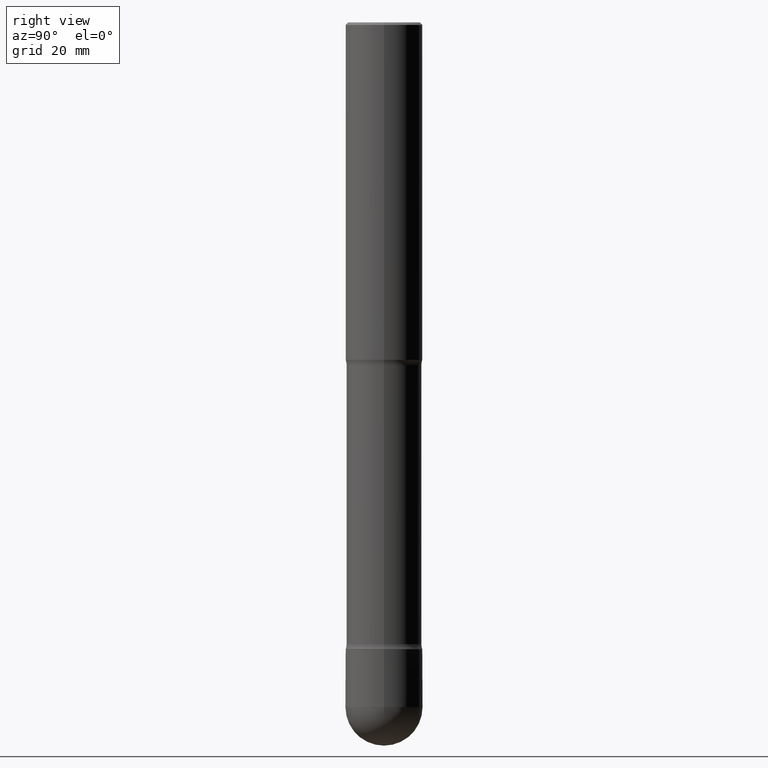
[diagram: clean part render]
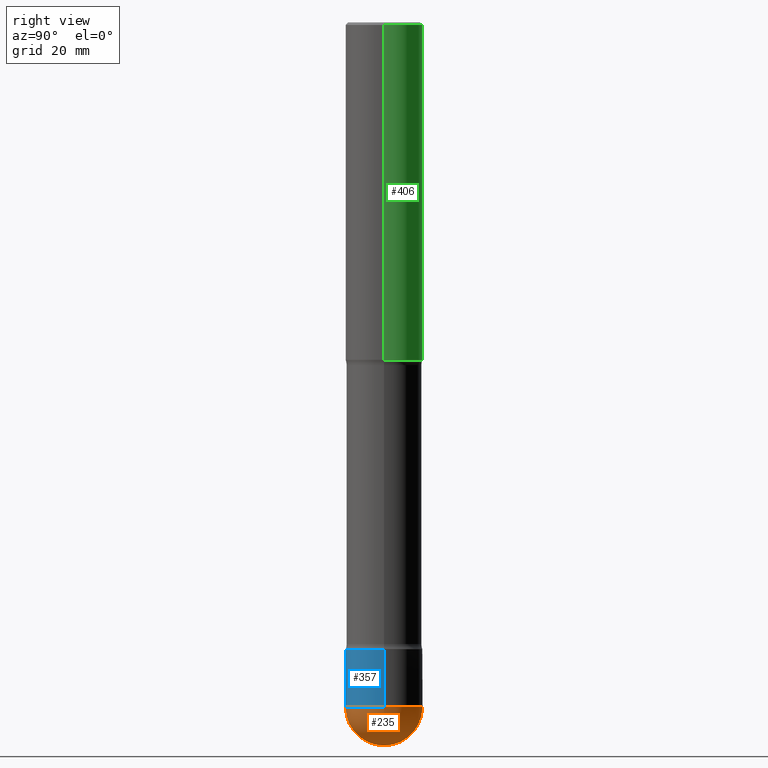
[diagram: same view with three faces highlighted in distinct colors, each labeled with its STEP entity id]
A machine part, right view with three faces highlighted in distinct colors.
Their STEP definitions:

[orange] entity #235 — the highlighted spherical surface has radius 7.9997 mm.
#34 = CARTESIAN_POINT ( 'NONE',  ( 0.3149499999999990085, -2.089380991493860711E-14, -5.590549999999999464 ) ) ;
#50 = EDGE_CURVE ( 'NONE', #518, #394, #399, .T. ) ;
#69 = DIRECTION ( 'NONE',  ( -1.000000000000000000, 6.982962677686266711E-15, -4.883557194083112901E-29 ) ) ;
#71 = AXIS2_PLACEMENT_3D ( 'NONE', #320, #222, #279 ) ;
#84 = ORIENTED_EDGE ( 'NONE', *, *, #526, .F. ) ;
#99 = AXIS2_PLACEMENT_3D ( 'NONE', #546, #69, #502 ) ;
#114 = CIRCLE ( 'NONE', #445, 0.3149499999999997302 ) ;
#116 = SPHERICAL_SURFACE ( 'NONE', #99, 0.3149499999999997302 ) ;
#121 = VERTEX_POINT ( 'NONE', #164 ) ;
#126 = ORIENTED_EDGE ( 'NONE', *, *, #50, .F. ) ;
#130 = DIRECTION ( 'NONE',  ( -2.445468806185136597E-29, 3.491481338843145583E-15, 1.000000000000000000 ) ) ;
#140 = EDGE_CURVE ( 'NONE', #121, #322, #114, .T. ) ;
#164 = CARTESIAN_POINT ( 'NONE',  ( 1.442824930378747100E-28, -2.063822817200776423E-14, -5.905499999999998195 ) ) ;
#212 = AXIS2_PLACEMENT_3D ( 'NONE', #512, #519, #338 ) ;
#222 = DIRECTION ( 'NONE',  ( -1.000000000000000000, 7.105427357601001070E-15, -4.926315508542082329E-29 ) ) ;
#235 = ADVANCED_FACE ( 'NONE', ( #329 ), #116, .T. ) ;
#248 = CARTESIAN_POINT ( 'NONE',  ( 1.367151563441831346E-28, -1.951930099886954466E-14, -5.590549999999999464 ) ) ;
#255 = CARTESIAN_POINT ( 'NONE',  ( 2.199284095337421611E-15, 0.3149499999999798017, -5.590550000000000352 ) ) ;
#261 = CARTESIAN_POINT ( 'NONE',  ( 1.364458217214061005E-28, -1.955787124980869236E-14, -5.590549999999999464 ) ) ;
#279 = DIRECTION ( 'NONE',  ( -7.105427357601000281E-15, -1.000000000000000000, 0.000000000000000000 ) ) ;
#281 = EDGE_LOOP ( 'NONE', ( #385, #560, #84, #126 ) ) ;
#286 = AXIS2_PLACEMENT_3D ( 'NONE', #248, #130, #308 ) ;
#308 = DIRECTION ( 'NONE',  ( 1.000000000000000000, -6.982962677686261977E-15, 0.000000000000000000 ) ) ;
#317 = CIRCLE ( 'NONE', #71, 0.3149499999999997302 ) ;
#320 = CARTESIAN_POINT ( 'NONE',  ( 1.364458217214061005E-28, -1.955787124980869236E-14, -5.590549999999999464 ) ) ;
#322 = VERTEX_POINT ( 'NONE', #255 ) ;
#329 = FACE_OUTER_BOUND ( 'NONE', #281, .T. ) ;
#338 = DIRECTION ( 'NONE',  ( 1.000000000000000000, -6.982962677686261977E-15, 0.000000000000000000 ) ) ;
#341 = CARTESIAN_POINT ( 'NONE',  ( -2.237854346276293990E-15, -0.3149500000000188815, -5.590549999999997688 ) ) ;
#385 = ORIENTED_EDGE ( 'NONE', *, *, #492, .F. ) ;
#394 = VERTEX_POINT ( 'NONE', #34 ) ;
#399 = CIRCLE ( 'NONE', #286, 0.3149499999999990085 ) ;
#445 = AXIS2_PLACEMENT_3D ( 'NONE', #261, #559, #473 ) ;
#455 = CIRCLE ( 'NONE', #212, 0.3149499999999990085 ) ;
#473 = DIRECTION ( 'NONE',  ( 6.982962677686266711E-15, 1.000000000000000000, 0.000000000000000000 ) ) ;
#492 = EDGE_CURVE ( 'NONE', #121, #518, #317, .T. ) ;
#502 = DIRECTION ( 'NONE',  ( 6.982962677686266711E-15, 1.000000000000000000, -3.469564049740295925E-15 ) ) ;
#512 = CARTESIAN_POINT ( 'NONE',  ( 1.367151563441831346E-28, -1.951930099886954466E-14, -5.590549999999999464 ) ) ;
#518 = VERTEX_POINT ( 'NONE', #341 ) ;
#519 = DIRECTION ( 'NONE',  ( -2.445468806185136597E-29, 3.491481338843145583E-15, 1.000000000000000000 ) ) ;
#526 = EDGE_CURVE ( 'NONE', #394, #322, #455, .T. ) ;
#546 = CARTESIAN_POINT ( 'NONE',  ( 1.364458217214061005E-28, -1.955787124980869236E-14, -5.590549999999999464 ) ) ;
#559 = DIRECTION ( 'NONE',  ( 1.000000000000000000, -6.982962677686265922E-15, 4.883557194083112340E-29 ) ) ;
#560 = ORIENTED_EDGE ( 'NONE', *, *, #140, .T. ) ;

[blue] entity #357 — the highlighted cylindrical surface (partial cylindrical patch) has radius 7.9997 mm, axis along (-0, 0, 1).
#8 = AXIS2_PLACEMENT_3D ( 'NONE', #117, #564, #245 ) ;
#34 = CARTESIAN_POINT ( 'NONE',  ( 0.3149499999999990085, -2.089380991493860711E-14, -5.590549999999999464 ) ) ;
#50 = EDGE_CURVE ( 'NONE', #518, #394, #399, .T. ) ;
#80 = DIRECTION ( 'NONE',  ( 1.000000000000000000, -6.982962677686266711E-15, 4.876176775795935793E-29 ) ) ;
#88 = EDGE_CURVE ( 'NONE', #370, #284, #468, .T. ) ;
#101 = EDGE_CURVE ( 'NONE', #394, #476, #199, .T. ) ;
#104 = EDGE_CURVE ( 'NONE', #284, #476, #432, .T. ) ;
#117 = CARTESIAN_POINT ( 'NONE',  ( 1.251615389693614574E-28, -1.786975064033310244E-14, -5.118099999999999206 ) ) ;
#129 = ORIENTED_EDGE ( 'NONE', *, *, #101, .T. ) ;
#130 = DIRECTION ( 'NONE',  ( -2.445468806185136597E-29, 3.491481338843145583E-15, 1.000000000000000000 ) ) ;
#134 = EDGE_LOOP ( 'NONE', ( #451, #307, #213, #129, #565 ) ) ;
#146 = CARTESIAN_POINT ( 'NONE',  ( 0.3149499999999990640, -2.006903473567038758E-14, -5.118099999999999206 ) ) ;
#167 = DIRECTION ( 'NONE',  ( -2.445468806185136877E-29, 3.491481338843145188E-15, 1.000000000000000000 ) ) ;
#169 = CIRCLE ( 'NONE', #442, 0.3149499999999990085 ) ;
#199 = LINE ( 'NONE', #293, #267 ) ;
#211 = FACE_OUTER_BOUND ( 'NONE', #134, .T. ) ;
#213 = ORIENTED_EDGE ( 'NONE', *, *, #50, .T. ) ;
#245 = DIRECTION ( 'NONE',  ( 1.000000000000000000, -6.982962677686273021E-15, 0.000000000000000000 ) ) ;
#248 = CARTESIAN_POINT ( 'NONE',  ( 1.367151563441831346E-28, -1.951930099886954466E-14, -5.590549999999999464 ) ) ;
#251 = CYLINDRICAL_SURFACE ( 'NONE', #533, 0.3149499999999990640 ) ;
#265 = CARTESIAN_POINT ( 'NONE',  ( -0.3149499999999990085, -1.645667147332489546E-14, -5.590549999999999464 ) ) ;
#267 = VECTOR ( 'NONE', #343, 39.37007874015748143 ) ;
#284 = VERTEX_POINT ( 'NONE', #495 ) ;
#286 = AXIS2_PLACEMENT_3D ( 'NONE', #248, #130, #308 ) ;
#293 = CARTESIAN_POINT ( 'NONE',  ( 0.3149499999999990640, -2.199284095337283166E-15, 1.535751875536925365E-29 ) ) ;
#307 = ORIENTED_EDGE ( 'NONE', *, *, #327, .T. ) ;
#308 = DIRECTION ( 'NONE',  ( 1.000000000000000000, -6.982962677686261977E-15, 0.000000000000000000 ) ) ;
#327 = EDGE_CURVE ( 'NONE', #370, #518, #169, .T. ) ;
#335 = CARTESIAN_POINT ( 'NONE',  ( -0.3149499999999990640, 2.237854346276428885E-15, -1.549218606675777912E-29 ) ) ;
#341 = CARTESIAN_POINT ( 'NONE',  ( -2.237854346276293990E-15, -0.3149500000000188815, -5.590549999999997688 ) ) ;
#343 = DIRECTION ( 'NONE',  ( -2.445468806185136877E-29, 3.491481338843145188E-15, 1.000000000000000000 ) ) ;
#357 = ADVANCED_FACE ( 'NONE', ( #211 ), #251, .T. ) ;
#370 = VERTEX_POINT ( 'NONE', #265 ) ;
#394 = VERTEX_POINT ( 'NONE', #34 ) ;
#399 = CIRCLE ( 'NONE', #286, 0.3149499999999990085 ) ;
#425 = DIRECTION ( 'NONE',  ( -2.445468806185136597E-29, 3.491481338843145583E-15, 1.000000000000000000 ) ) ;
#432 = CIRCLE ( 'NONE', #8, 0.3149499999999990640 ) ;
#442 = AXIS2_PLACEMENT_3D ( 'NONE', #558, #467, #462 ) ;
#451 = ORIENTED_EDGE ( 'NONE', *, *, #88, .F. ) ;
#462 = DIRECTION ( 'NONE',  ( 1.000000000000000000, -6.982962677686261977E-15, 0.000000000000000000 ) ) ;
#467 = DIRECTION ( 'NONE',  ( -2.445468806185136597E-29, 3.491481338843145583E-15, 1.000000000000000000 ) ) ;
#468 = LINE ( 'NONE', #335, #482 ) ;
#476 = VERTEX_POINT ( 'NONE', #146 ) ;
#482 = VECTOR ( 'NONE', #167, 39.37007874015748143 ) ;
#495 = CARTESIAN_POINT ( 'NONE',  ( -0.3149499999999990640, -1.645667147332489546E-14, -5.118099999999999206 ) ) ;
#518 = VERTEX_POINT ( 'NONE', #341 ) ;
#521 = CARTESIAN_POINT ( 'NONE',  ( 0.000000000000000000, 0.000000000000000000, 0.000000000000000000 ) ) ;
#533 = AXIS2_PLACEMENT_3D ( 'NONE', #521, #425, #80 ) ;
#558 = CARTESIAN_POINT ( 'NONE',  ( 1.367151563441831346E-28, -1.951930099886954466E-14, -5.590549999999999464 ) ) ;
#564 = DIRECTION ( 'NONE',  ( -2.445468806185136597E-29, 3.491481338843145583E-15, 1.000000000000000000 ) ) ;
#565 = ORIENTED_EDGE ( 'NONE', *, *, #104, .F. ) ;

[green] entity #406 — the highlighted cylindrical surface (partial cylindrical patch) has radius 7.9997 mm, axis along (0, -0, -1).
#6 = CARTESIAN_POINT ( 'NONE',  ( 4.890937612370354609E-31, -6.982962677686407473E-17, -0.02000000000000033348 ) ) ;
#28 = DIRECTION ( 'NONE',  ( 2.445468806185136597E-29, -3.491481338843145583E-15, -1.000000000000000000 ) ) ;
#29 = VECTOR ( 'NONE', #506, 39.37007874015748143 ) ;
#35 = CARTESIAN_POINT ( 'NONE',  ( 6.739467482965618232E-29, -9.622173421717824390E-15, -2.755900000000000016 ) ) ;
#36 = VERTEX_POINT ( 'NONE', #352 ) ;
#57 = EDGE_CURVE ( 'NONE', #36, #515, #312, .T. ) ;
#68 = ORIENTED_EDGE ( 'NONE', *, *, #131, .F. ) ;
#75 = CARTESIAN_POINT ( 'NONE',  ( 0.3149499999999998967, -2.003046448473124620E-14, -5.118099999999999206 ) ) ;
#79 = CARTESIAN_POINT ( 'NONE',  ( 0.3149500000000000632, -7.006715368645486812E-15, -2.755900000000000016 ) ) ;
#86 = CARTESIAN_POINT ( 'NONE',  ( 0.3149499999999997302, -2.230543471175006266E-15, -0.02000000000000033348 ) ) ;
#113 = EDGE_CURVE ( 'NONE', #344, #515, #517, .T. ) ;
#125 = AXIS2_PLACEMENT_3D ( 'NONE', #159, #350, #163 ) ;
#131 = EDGE_CURVE ( 'NONE', #236, #36, #415, .T. ) ;
#139 = DIRECTION ( 'NONE',  ( 2.445468806185136597E-29, -3.491481338843145583E-15, -1.000000000000000000 ) ) ;
#154 = VECTOR ( 'NONE', #381, 39.37007874015748143 ) ;
#159 = CARTESIAN_POINT ( 'NONE',  ( 1.251615389693614574E-28, -1.786975064033310244E-14, -5.118099999999999206 ) ) ;
#163 = DIRECTION ( 'NONE',  ( -1.000000000000000000, 6.982962677686265922E-15, 0.000000000000000000 ) ) ;
#168 = AXIS2_PLACEMENT_3D ( 'NONE', #35, #28, #309 ) ;
#234 = CARTESIAN_POINT ( 'NONE',  ( -0.3149499999999997302, 2.129454468560423812E-15, -0.02000000000000033348 ) ) ;
#236 = VERTEX_POINT ( 'NONE', #234 ) ;
#291 = ORIENTED_EDGE ( 'NONE', *, *, #481, .T. ) ;
#309 = DIRECTION ( 'NONE',  ( -1.000000000000000000, 6.982962677686268288E-15, 0.000000000000000000 ) ) ;
#312 = CIRCLE ( 'NONE', #168, 0.3149500000000000632 ) ;
#344 = VERTEX_POINT ( 'NONE', #86 ) ;
#350 = DIRECTION ( 'NONE',  ( 2.445468806185136597E-29, -3.491481338843145583E-15, -1.000000000000000000 ) ) ;
#352 = CARTESIAN_POINT ( 'NONE',  ( -0.3149500000000000632, -7.422889326380534519E-15, -2.755900000000000016 ) ) ;
#380 = FACE_OUTER_BOUND ( 'NONE', #464, .T. ) ;
#381 = DIRECTION ( 'NONE',  ( 2.445468806185136877E-29, -3.491481338843145188E-15, -1.000000000000000000 ) ) ;
#388 = AXIS2_PLACEMENT_3D ( 'NONE', #6, #139, #527 ) ;
#393 = CYLINDRICAL_SURFACE ( 'NONE', #125, 0.3149499999999998967 ) ;
#406 = ADVANCED_FACE ( 'NONE', ( #380 ), #393, .T. ) ;
#415 = LINE ( 'NONE', #548, #29 ) ;
#464 = EDGE_LOOP ( 'NONE', ( #291, #554, #493, #68 ) ) ;
#481 = EDGE_CURVE ( 'NONE', #236, #344, #483, .T. ) ;
#483 = CIRCLE ( 'NONE', #388, 0.3149499999999997302 ) ;
#493 = ORIENTED_EDGE ( 'NONE', *, *, #57, .F. ) ;
#506 = DIRECTION ( 'NONE',  ( 2.445468806185136877E-29, -3.491481338843145188E-15, -1.000000000000000000 ) ) ;
#515 = VERTEX_POINT ( 'NONE', #79 ) ;
#517 = LINE ( 'NONE', #75, #154 ) ;
#527 = DIRECTION ( 'NONE',  ( -1.000000000000000000, 6.982962677686266711E-15, 0.000000000000000000 ) ) ;
#548 = CARTESIAN_POINT ( 'NONE',  ( -0.3149499999999998967, -1.567046654499581415E-14, -5.118099999999999206 ) ) ;
#554 = ORIENTED_EDGE ( 'NONE', *, *, #113, .T. ) ;